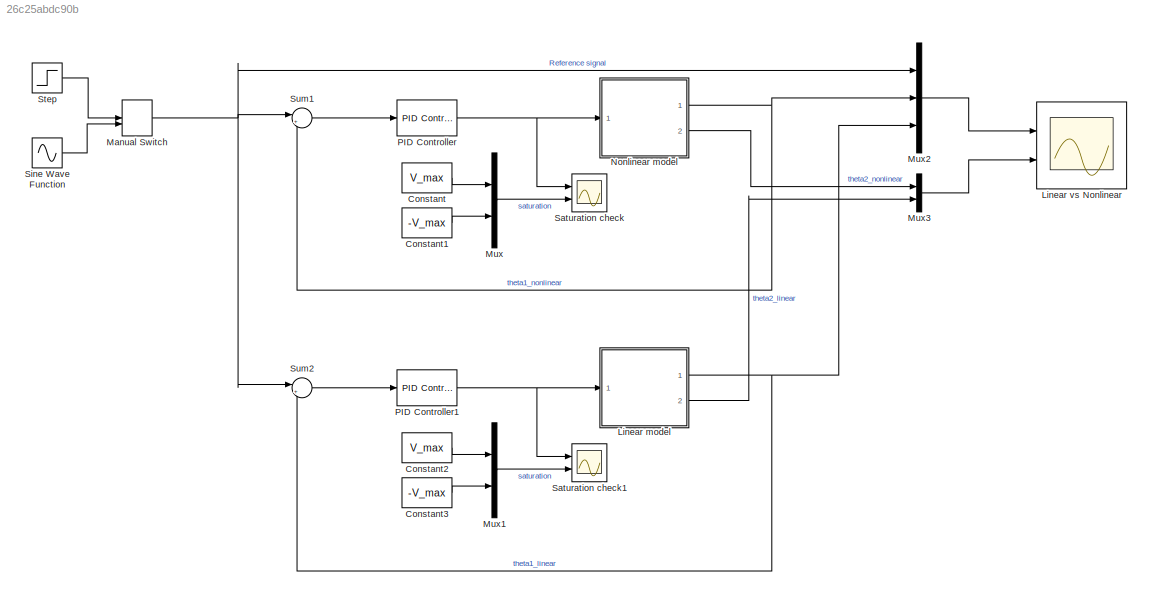
MODEL slx_26c25abdc90b
KIND model
CONFIG AbsTol = auto
CONFIG EnableMultiTasking = off
CONFIG FixedStep = 1e-2
CONFIG MaxStep = auto
CONFIG MinStep = auto
CONFIG RelTol = 1e-3
CONFIG SampleTimeConstraint = Unconstrained
CONFIG Solver = FixedStepAuto
CONFIG SolverName = FixedStepAuto
CONFIG StartTime = 0.0
CONFIG StopTime = 10.0
BLOCK [Constant] Constant
  Value = V_max
BLOCK [Constant] Constant1
  Value = -V_max
BLOCK [Constant] Constant2
  Value = V_max
BLOCK [Constant] Constant3
  Value = -V_max
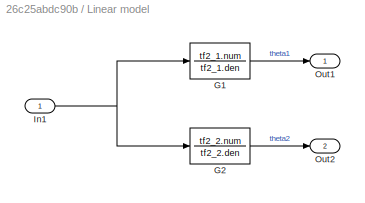
BLOCK [SubSystem] Linear model
  Ports = [1, 2]
  RequestExecContextInheritance = off
BLOCK [TransferFcn] Linear model/G1
  Denominator = tf2_1.den
  Numerator = tf2_1.num
BLOCK [TransferFcn] Linear model/G2
  Denominator = tf2_2.den
  Numerator = tf2_2.num
BLOCK [Inport] Linear model/In1
  IconDisplay = Port number
BLOCK [Outport] Linear model/Out1
  IconDisplay = Port number
BLOCK [Outport] Linear model/Out2
  IconDisplay = Port number
  Port = 2
BLOCK [Scope] Linear vs Nonlinear
  Floating = off
  NumInputPorts = 2
  Ports = [2]
  ScopeSpecificationString = Simulink.scopes.TimeScopeBlockCfg('CurrentConfiguration', extmgr.ConfigurationSet(extmgr.Configuration('Core','General UI',true),extmgr.Configuration('Core','Source UI',true),extmgr.Configuration('Sources','WiredSimulink',true,'DataLoggingVariableName','ScopeData2'),extmgr.Configuration('Visuals','Time Domain',true,'SerializedDisplays',{struct('MinYLimReal','0.8758','MaxYLimReal','1.27316','YLabel...<+2378ch>
BLOCK [ManualSwitch] Manual Switch
  CurrentSetting = 0
BLOCK [Mux] Mux
  DisplayOption = bar
  Inputs = 2
  Ports = [2, 1]
BLOCK [Mux] Mux1
  DisplayOption = bar
  Inputs = 2
  Ports = [2, 1]
BLOCK [Mux] Mux2
  DisplayOption = bar
  Inputs = 3
  Ports = [3, 1]
BLOCK [Mux] Mux3
  DisplayOption = bar
  Inputs = 2
  Ports = [2, 1]
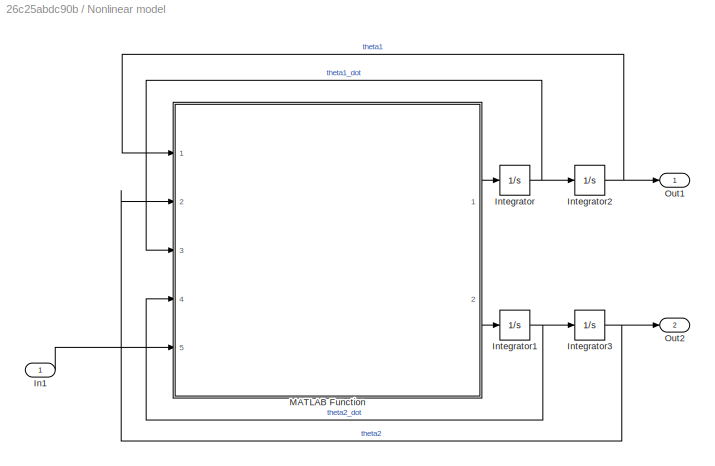
BLOCK [SubSystem] Nonlinear model
  Ports = [1, 2]
  RequestExecContextInheritance = off
BLOCK [Inport] Nonlinear model/In1
  IconDisplay = Port number
BLOCK [Integrator] Nonlinear model/Integrator
  Ports = [1, 1]
BLOCK [Integrator] Nonlinear model/Integrator1
  Ports = [1, 1]
BLOCK [Integrator] Nonlinear model/Integrator2
  Ports = [1, 1]
BLOCK [Integrator] Nonlinear model/Integrator3
  Ports = [1, 1]
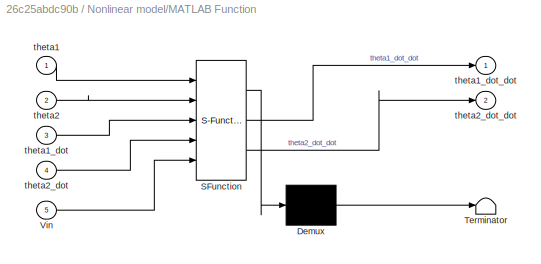
BLOCK [SubSystem] Nonlinear model/MATLAB Function
  ErrorFcn = Stateflow.Translate.translate
  PermitHierarchicalResolution = ExplicitOnly
  Ports = [5, 2]
  RequestExecContextInheritance = off
  SFBlockType = MATLAB Function
  TreatAsAtomicUnit = on
BLOCK [Demux] Nonlinear model/MATLAB Function/ Demux 
  DisplayOption = bar
  Outputs = 1
  Ports = [1, 1]
BLOCK [S-Function] Nonlinear model/MATLAB Function/ SFunction 
  EnableBusSupport = on
  FunctionName = sf_sfun
  Parameters = Pars
  PortCounts = [5 3]
  Ports = [5, 3]
  SFcnIsStateOwnerBlock = off
  SFunctionDeploymentMode = off
  Tag = Stateflow S-Function 2
BLOCK [Terminator] Nonlinear model/MATLAB Function/ Terminator 
BLOCK [Inport] Nonlinear model/MATLAB Function/Vin
  IconDisplay = Port number
  Port = 5
BLOCK [Inport] Nonlinear model/MATLAB Function/theta1
  IconDisplay = Port number
BLOCK [Inport] Nonlinear model/MATLAB Function/theta1_dot
  IconDisplay = Port number
  Port = 3
BLOCK [Outport] Nonlinear model/MATLAB Function/theta1_dot_dot
  IconDisplay = Port number
BLOCK [Inport] Nonlinear model/MATLAB Function/theta2
  IconDisplay = Port number
  Port = 2
BLOCK [Inport] Nonlinear model/MATLAB Function/theta2_dot
  IconDisplay = Port number
  Port = 4
BLOCK [Outport] Nonlinear model/MATLAB Function/theta2_dot_dot
  IconDisplay = Port number
  Port = 2
BLOCK [Outport] Nonlinear model/Out1
  IconDisplay = Port number
BLOCK [Outport] Nonlinear model/Out2
  IconDisplay = Port number
  Port = 2
BLOCK [Reference] PID Controller  REF=simulink/Continuous/PID Controller
  Ports = [1, 1]
  SourceBlock = simulink/Continuous/PID Controller
  SourceProductBaseCode = SL
  SourceProductName = Simulink
  SourceType = PID 1dof
BLOCK [Reference] PID Controller1  REF=simulink/Continuous/PID Controller
  Ports = [1, 1]
  SourceBlock = simulink/Continuous/PID Controller
  SourceProductBaseCode = SL
  SourceProductName = Simulink
  SourceType = PID 1dof
BLOCK [Scope] Saturation check
  Floating = off
  NumInputPorts = 2
  Ports = [2]
  ScopeSpecificationString = Simulink.scopes.TimeScopeBlockCfg('CurrentConfiguration', extmgr.ConfigurationSet(extmgr.Configuration('Core','General UI',true),extmgr.Configuration('Core','Source UI',true),extmgr.Configuration('Sources','WiredSimulink',true,'DataLoggingVariableName','ScopeData1'),extmgr.Configuration('Visuals','Time Domain',true,'SerializedDisplays',{struct('MinYLimReal','-12.5','MaxYLimReal','12.5','YLabelReal...<+1592ch>
BLOCK [Scope] Saturation check1
  Floating = off
  NumInputPorts = 2
  Ports = [2]
  ScopeSpecificationString = Simulink.scopes.TimeScopeBlockCfg('CurrentConfiguration', extmgr.ConfigurationSet(extmgr.Configuration('Core','General UI',true),extmgr.Configuration('Core','Source UI',true),extmgr.Configuration('Sources','WiredSimulink',true,'DataLoggingVariableName','ScopeData1'),extmgr.Configuration('Visuals','Time Domain',true,'SerializedDisplays',{struct('MinYLimReal','-12.5','MaxYLimReal','12.5','YLabelReal...<+1592ch>
BLOCK [Sin] Sine Wave Function
  Frequency = 3.5
  Ports = [0, 1]
  SampleTime = 0
BLOCK [Step] Step
  SampleTime = 0
BLOCK [Sum] Sum1
  IconShape = round
  InputSameDT = off
  Inputs = |+-
  OutDataTypeStr = Inherit: Inherit via internal rule
  Ports = [2, 1]
  SaturateOnIntegerOverflow = off
BLOCK [Sum] Sum2
  IconShape = round
  InputSameDT = off
  Inputs = |+-
  OutDataTypeStr = Inherit: Inherit via internal rule
  Ports = [2, 1]
  SaturateOnIntegerOverflow = off
LINE Constant1:1 -> Mux:2
LINE Constant2:1 -> Mux1:1
LINE Constant3:1 -> Mux1:2
LINE Constant:1 -> Mux:1
LINE Linear model/G1:1 -> Linear model/Out1:1
LINE Linear model/G2:1 -> Linear model/Out2:1
NET Linear model/In1:1 -> Linear model/G1:1, Linear model/G2:1
NET Linear model:1 -> Mux2:3, Sum2:2
LINE Linear model:2 -> Mux3:2
NET Manual Switch:1 -> Mux2:1, Sum1:1, Sum2:1
LINE Mux1:1 -> Saturation check1:2
LINE Mux2:1 -> Linear vs Nonlinear:1
LINE Mux3:1 -> Linear vs Nonlinear:2
LINE Mux:1 -> Saturation check:2
LINE Nonlinear model/In1:1 -> Nonlinear model/MATLAB Function:5
NET Nonlinear model/Integrator1:1 -> Nonlinear model/Integrator3:1, Nonlinear model/MATLAB Function:4
NET Nonlinear model/Integrator2:1 -> Nonlinear model/MATLAB Function:1, Nonlinear model/Out1:1
NET Nonlinear model/Integrator3:1 -> Nonlinear model/MATLAB Function:2, Nonlinear model/Out2:1
NET Nonlinear model/Integrator:1 -> Nonlinear model/Integrator2:1, Nonlinear model/MATLAB Function:3
LINE Nonlinear model/MATLAB Function:1 -> Nonlinear model/Integrator:1
LINE Nonlinear model/MATLAB Function:2 -> Nonlinear model/Integrator1:1
NET Nonlinear model:1 -> Mux2:2, Sum1:2
LINE Nonlinear model:2 -> Mux3:1
NET PID Controller1:1 -> Linear model:1, Saturation check1:1
NET PID Controller:1 -> Nonlinear model:1, Saturation check:1
LINE Sine Wave Function:1 -> Manual Switch:2
LINE Step:1 -> Manual Switch:1
LINE Sum1:1 -> PID Controller:1
LINE Sum2:1 -> PID Controller1:1
note: NET lines group one-source signal fan-out (src -> all destinations, sorted); 1:1 wires keep LINE
CHART Nonlinear model/MATLAB Function states=1 transitions=1
  STATE_LABEL 'eML_blk_kernel()'
  STATE_LABEL 'SCRIPT:\nfunction [theta1_dot_dot,theta2_dot_dot] = fcn(theta1, theta2, theta1_dot, theta2_dot,Vin, Pars)\n\n   k1 = Pars.Jeq + Pars.m2*(Pars.l1^2 + Pars.x2^2*sin(theta2)^2);\n   k2 = Pars.m2*Pars.l1*Pars.x2*cos(theta2);\n   k3 = 2*Pars.m2*Pars.x2^2*sin(theta2)*cos(theta2)*theta1_dot*theta2_dot - Pars.m2*Pars.l1*Pars.x2*sin(theta2)*theta2_dot^2 +Pars.Ks*theta1 - Pars.Km/Pars.Rm*Vin + (Pars.Km^2)/Pars.R...<+346ch>'
